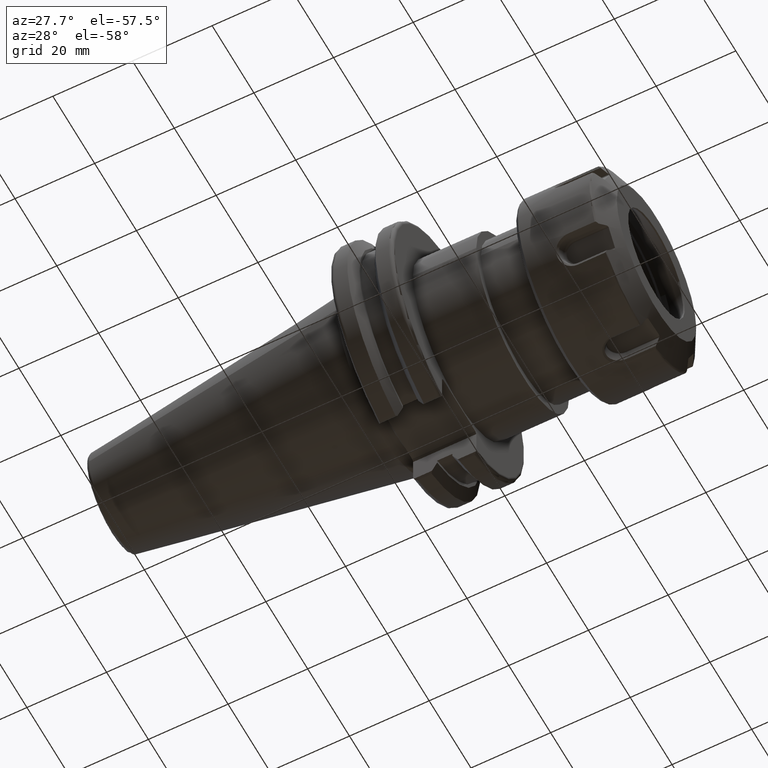
[diagram: clean part render]
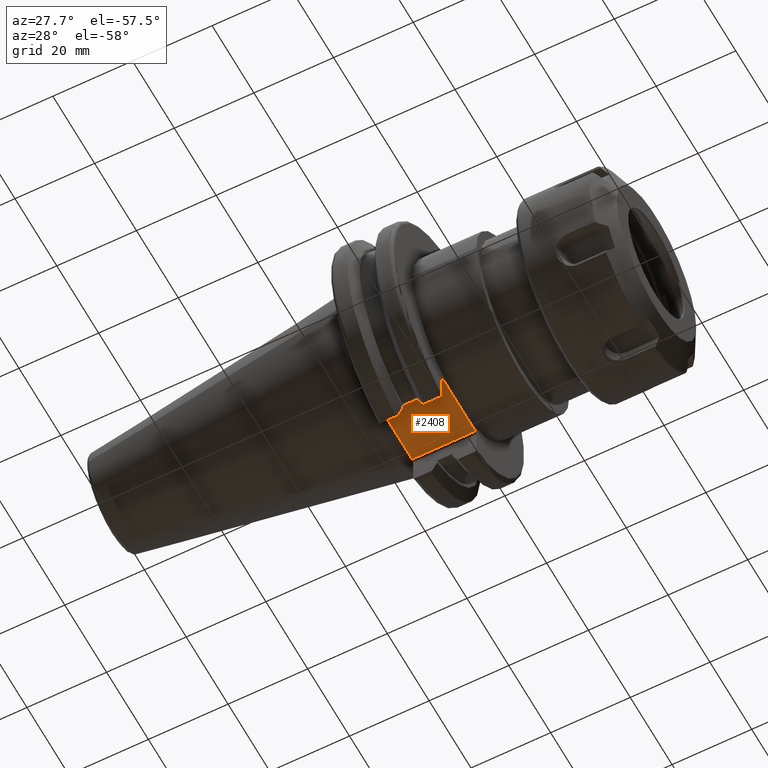
[diagram: same view with one face highlighted and labeled with its STEP entity id]
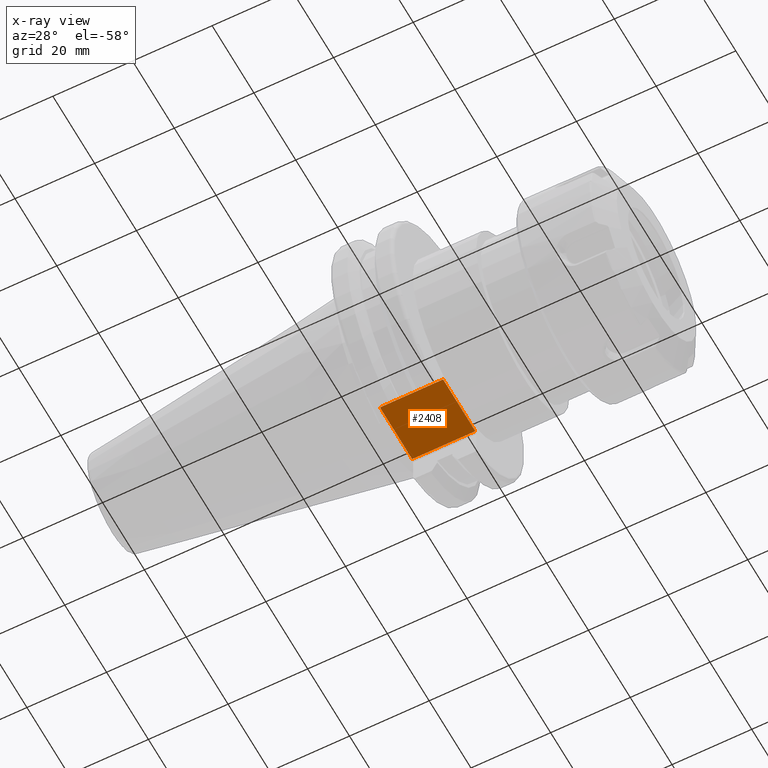
[diagram: x-ray of the same camera — body ghosted, the highlighted face saturated]
A machine part, auxiliary view. The second image highlights one B-rep face of the part: STEP entity #2408.
The next image is the same camera in x-ray: the body ghosted, the highlighted face saturated — about 0% of this face is hidden behind the body in this view.
In plain terms, the highlighted planar face has unit normal (0, 0, 1).
Its self-contained STEP definition (entity closure, byte-faithful):
#262=PLANE('',#2658);
#375=FACE_OUTER_BOUND('',#524,.T.);
#524=EDGE_LOOP('',(#1811,#1812,#1813,#1814));
#659=LINE('',#3561,#813);
#678=LINE('',#3658,#832);
#696=LINE('',#3829,#850);
#697=LINE('',#3831,#851);
#813=VECTOR('',#2919,10.);
#832=VECTOR('',#2956,10.);
#850=VECTOR('',#3020,10.);
#851=VECTOR('',#3023,10.);
#1082=VERTEX_POINT('',#3558);
#1083=VERTEX_POINT('',#3560);
#1108=VERTEX_POINT('',#3655);
#1109=VERTEX_POINT('',#3657);
#1318=EDGE_CURVE('',#1082,#1083,#659,.T.);
#1349=EDGE_CURVE('',#1108,#1109,#678,.T.);
#1395=EDGE_CURVE('',#1109,#1082,#696,.T.);
#1396=EDGE_CURVE('',#1083,#1108,#697,.T.);
#1811=ORIENTED_EDGE('',*,*,#1395,.F.);
#1812=ORIENTED_EDGE('',*,*,#1349,.F.);
#1813=ORIENTED_EDGE('',*,*,#1396,.F.);
#1814=ORIENTED_EDGE('',*,*,#1318,.F.);
#2408=ADVANCED_FACE('',(#375),#262,.F.);
#2658=AXIS2_PLACEMENT_3D('',#3830,#3021,#3022);
#2919=DIRECTION('',(0.,-1.,0.));
#2956=DIRECTION('',(0.,1.,0.));
#3020=DIRECTION('',(-1.,-1.31581988103722E-16,0.));
#3021=DIRECTION('center_axis',(0.,0.,1.));
#3022=DIRECTION('ref_axis',(1.,0.,0.));
#3023=DIRECTION('',(1.,0.,0.));
#3558=CARTESIAN_POINT('',(3.175,7.69,-22.6));
#3560=CARTESIAN_POINT('',(3.175,-7.69,-22.6));
#3561=CARTESIAN_POINT('',(3.175,15.875,-22.6));
#3655=CARTESIAN_POINT('',(19.05,-7.69,-22.6));
#3657=CARTESIAN_POINT('',(19.05,7.69,-22.6));
#3658=CARTESIAN_POINT('',(19.05,-2.77555756156289E-16,-22.6));
#3829=CARTESIAN_POINT('',(9.44125,7.69,-22.6));
#3830=CARTESIAN_POINT('Origin',(15.7075,-5.55111512312578E-16,-22.6));
#3831=CARTESIAN_POINT('',(17.87875,-7.69,-22.6));